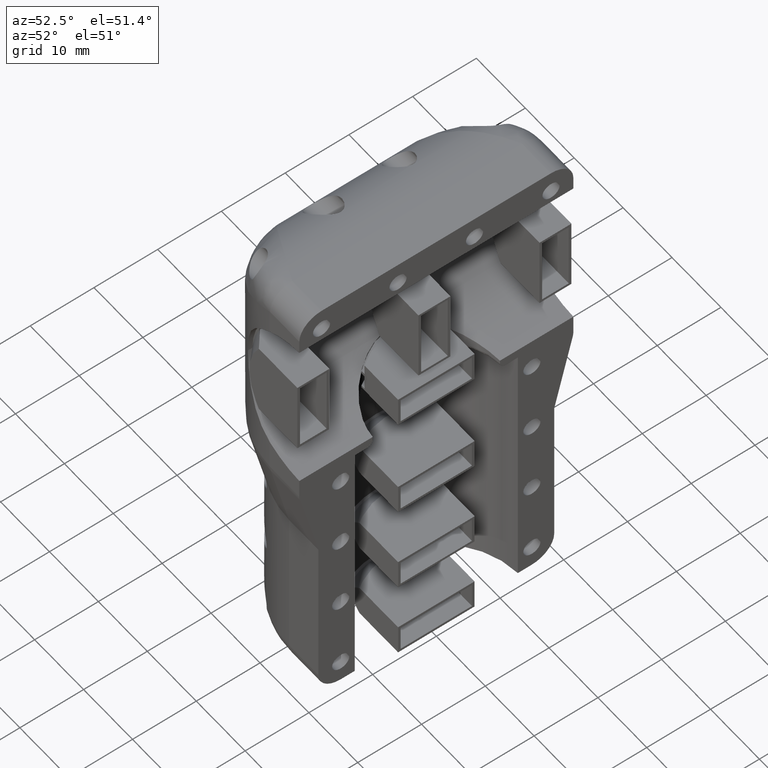
[diagram: clean part render]
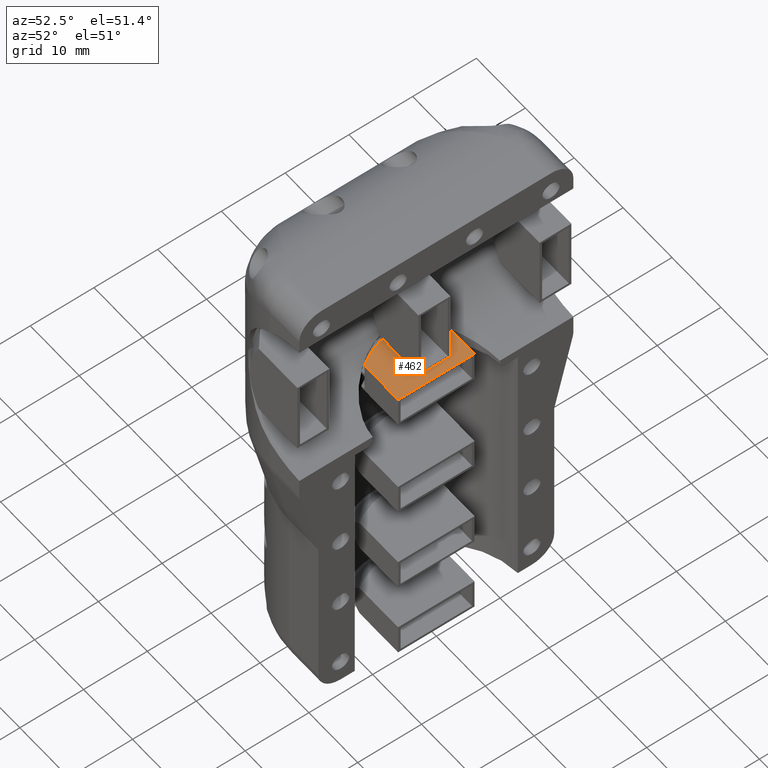
[diagram: same view with one face highlighted and labeled with its STEP entity id]
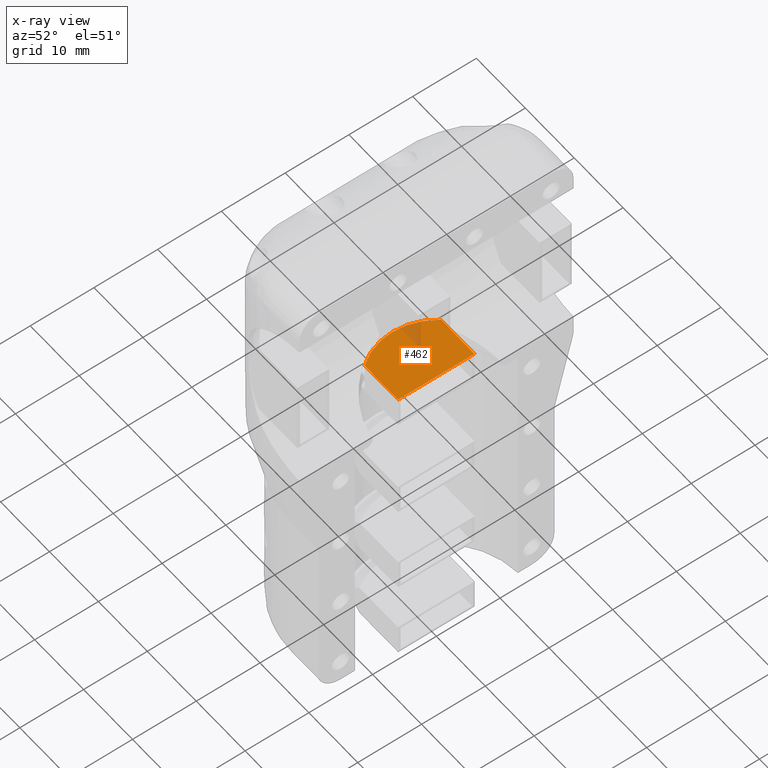
[diagram: x-ray of the same camera — body ghosted, the highlighted face saturated]
A machine part, auxiliary view. The second image highlights one B-rep face of the part: STEP entity #462.
The next image is the same camera in x-ray: the body ghosted, the highlighted face saturated — about 7% of this face is hidden behind the body in this view.
In plain terms, the highlighted planar face has unit normal (0, 0, 1).
Its self-contained STEP definition (entity closure, byte-faithful):
#462=ADVANCED_FACE('',(#714),#2578,.T.);
#714=FACE_OUTER_BOUND('',#999,.F.);
#999=EDGE_LOOP('',(#1997,#1998,#1999,#2000));
#1997=ORIENTED_EDGE('',*,*,#4945,.F.);
#1998=ORIENTED_EDGE('',*,*,#4960,.T.);
#1999=ORIENTED_EDGE('',*,*,#4959,.T.);
#2000=ORIENTED_EDGE('',*,*,#4958,.T.);
#2578=PLANE('',#6117);
#3614=CIRCLE('',#5928,9.5);
#3901=LINE('',#9711,#4280);
#3902=LINE('',#9712,#4281);
#3903=LINE('',#9713,#4282);
#4280=VECTOR('',#6867,6.86564945799233);
#4281=VECTOR('',#6868,12.0000000060447);
#4282=VECTOR('',#6869,6.86526863770568);
#4945=EDGE_CURVE('',#5308,#5307,#3614,.T.);
#4958=EDGE_CURVE('',#5301,#5307,#3901,.T.);
#4959=EDGE_CURVE('',#5299,#5301,#3902,.T.);
#4960=EDGE_CURVE('',#5308,#5299,#3903,.T.);
#5299=VERTEX_POINT('',#7647);
#5301=VERTEX_POINT('',#7649);
#5307=VERTEX_POINT('',#7655);
#5308=VERTEX_POINT('',#7656);
#5928=AXIS2_PLACEMENT_3D('',#9698,#6853,#6854);
#6117=AXIS2_PLACEMENT_3D('',#10513,#7373,#7374);
#6853=DIRECTION('',(0.,0.,1.));
#6854=DIRECTION('',(-0.775291528155297,0.631603551581706,0.));
#6867=DIRECTION('',(-0.999999999496444,3.17350237943587E-05,0.));
#6868=DIRECTION('',(0.,-1.,0.));
#6869=DIRECTION('',(0.999999999496444,-3.17350237948951E-05,0.));
#7373=DIRECTION('',(0.,0.,1.));
#7374=DIRECTION('',(-1.,0.,0.));
#7647=CARTESIAN_POINT('',(0.,6.00063519971629,48.8997694628473));
#7649=CARTESIAN_POINT('',(0.,-5.99936480632841,48.8997694628473));
#7655=CARTESIAN_POINT('',(-6.86564945453523,-5.99914692477949,48.8997694628473));
#7656=CARTESIAN_POINT('',(-6.86526863424913,6.00085306917987,48.8997694628473));
#9698=CARTESIAN_POINT('',(0.500000883226192,0.000619329153658725,48.8997694628473));
#9711=CARTESIAN_POINT('',(0.,-5.9993648063284,48.8997694628473));
#9712=CARTESIAN_POINT('',(0.,6.00063519971629,48.8997694628473));
#9713=CARTESIAN_POINT('',(-6.86526863424913,6.00085306917987,48.8997694628473));
#10513=CARTESIAN_POINT('',(10.1900008832262,9.69061932915366,48.8997694628473));